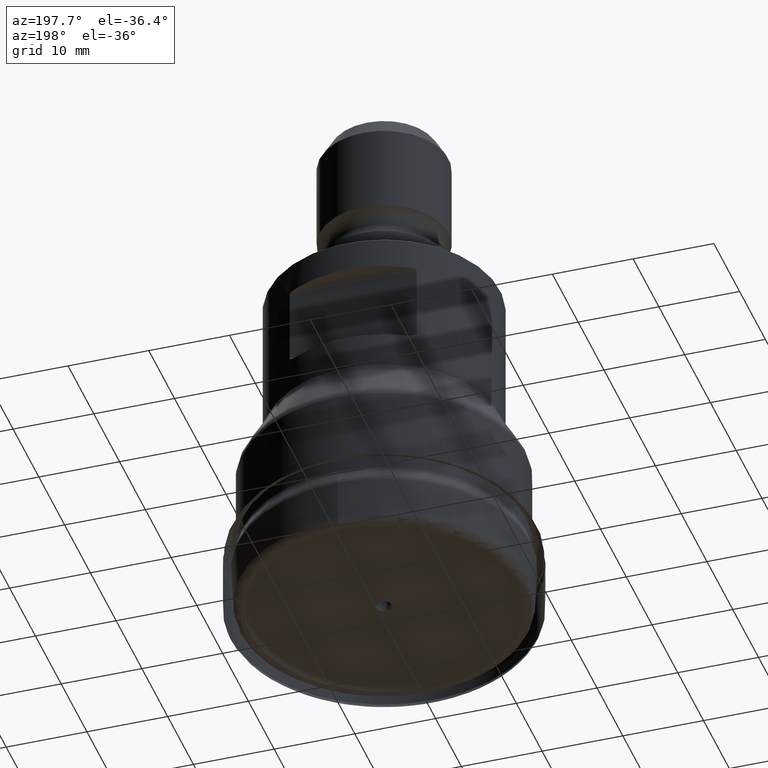
[diagram: clean part render]
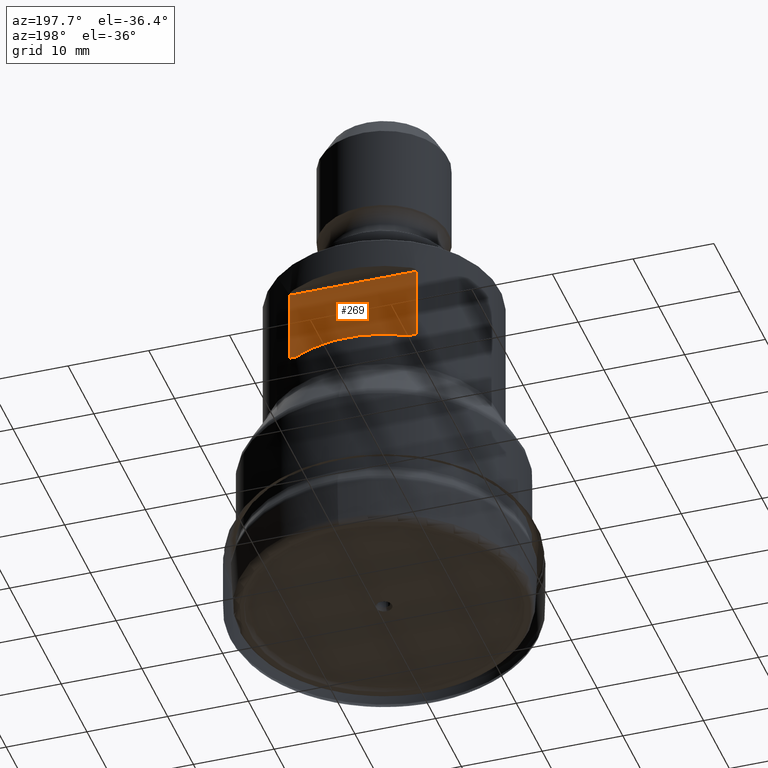
[diagram: same view with one face highlighted and labeled with its STEP entity id]
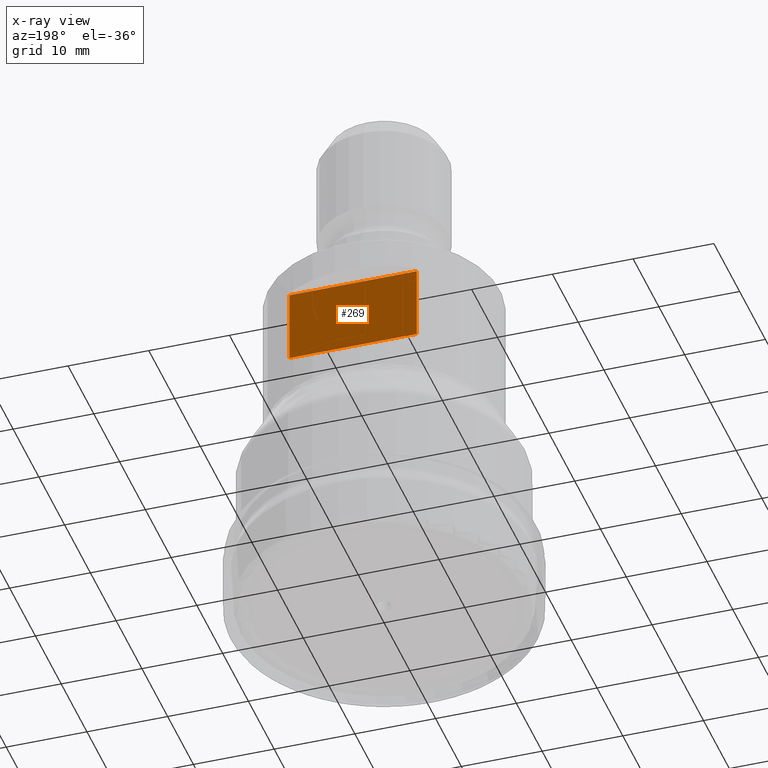
[diagram: x-ray of the same camera — body ghosted, the highlighted face saturated]
A machine part, auxiliary view. The second image highlights one B-rep face of the part: STEP entity #269.
The next image is the same camera in x-ray: the body ghosted, the highlighted face saturated — about 0% of this face is hidden behind the body in this view.
In plain terms, the highlighted planar face has unit normal (-0, -1, 0).
Its self-contained STEP definition (entity closure, byte-faithful):
#163=FACE_OUTER_BOUND('',#491,.T.);
#179=LINE('',#1596,#194);
#180=LINE('',#1637,#195);
#187=LINE('',#1817,#202);
#188=LINE('',#1818,#203);
#194=VECTOR('',#1106,1.);
#195=VECTOR('',#1109,1.);
#202=VECTOR('',#1222,1.);
#203=VECTOR('',#1223,1.);
#269=ADVANCED_FACE('',(#163),#305,.F.);
#305=PLANE('',#1039);
#491=EDGE_LOOP('',(#638,#639,#640,#641));
#638=ORIENTED_EDGE('',*,*,#788,.T.);
#639=ORIENTED_EDGE('',*,*,#826,.T.);
#640=ORIENTED_EDGE('',*,*,#792,.T.);
#641=ORIENTED_EDGE('',*,*,#827,.T.);
#714=VERTEX_POINT('',#1594);
#716=VERTEX_POINT('',#1597);
#719=VERTEX_POINT('',#1636);
#720=VERTEX_POINT('',#1638);
#788=EDGE_CURVE('',#716,#714,#179,.T.);
#792=EDGE_CURVE('',#720,#719,#180,.T.);
#826=EDGE_CURVE('',#714,#720,#187,.T.);
#827=EDGE_CURVE('',#719,#716,#188,.T.);
#1039=AXIS2_PLACEMENT_3D('',#1819,#1224,#1225);
#1106=DIRECTION('',(0.,-1.17145536458252E-15,-1.));
#1109=DIRECTION('',(0.,1.17145536458252E-15,1.));
#1222=DIRECTION('',(-1.,2.1958943039393E-15,-2.5723921624059E-30));
#1223=DIRECTION('',(1.,-2.1958943039393E-15,2.5723921624059E-30));
#1224=DIRECTION('',(-2.1958943039393E-15,-1.,9.97983016984843E-16));
#1225=DIRECTION('',(0.,9.97465998686664E-16,1.));
#1594=CARTESIAN_POINT('',(7.87090852443352,12.,30.85));
#1596=CARTESIAN_POINT('',(7.87090852443351,12.,-1.19757962038181E-14));
#1597=CARTESIAN_POINT('',(7.87090852443352,12.,40.05));
#1636=CARTESIAN_POINT('',(-7.87090852443347,12.0000000000001,40.05));
#1637=CARTESIAN_POINT('',(-7.87090852443346,12.,-1.19757962038181E-14));
#1638=CARTESIAN_POINT('',(-7.87090852443347,12.0000000000001,30.85));
#1817=CARTESIAN_POINT('',(15.,12.,30.85));
#1818=CARTESIAN_POINT('',(15.,12.,40.05));
#1819=CARTESIAN_POINT('',(15.,12.,30.45));